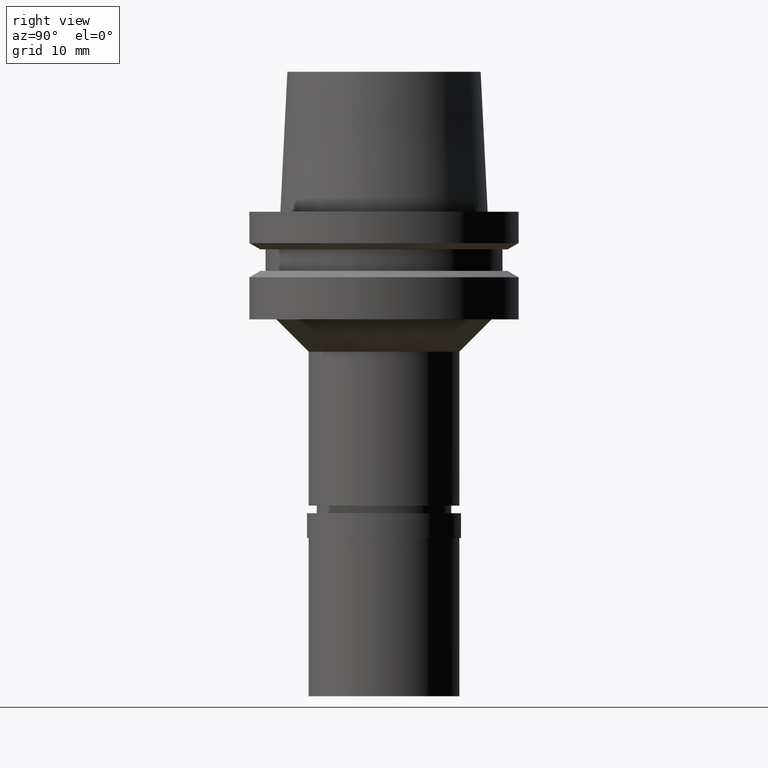
[diagram: clean part render]
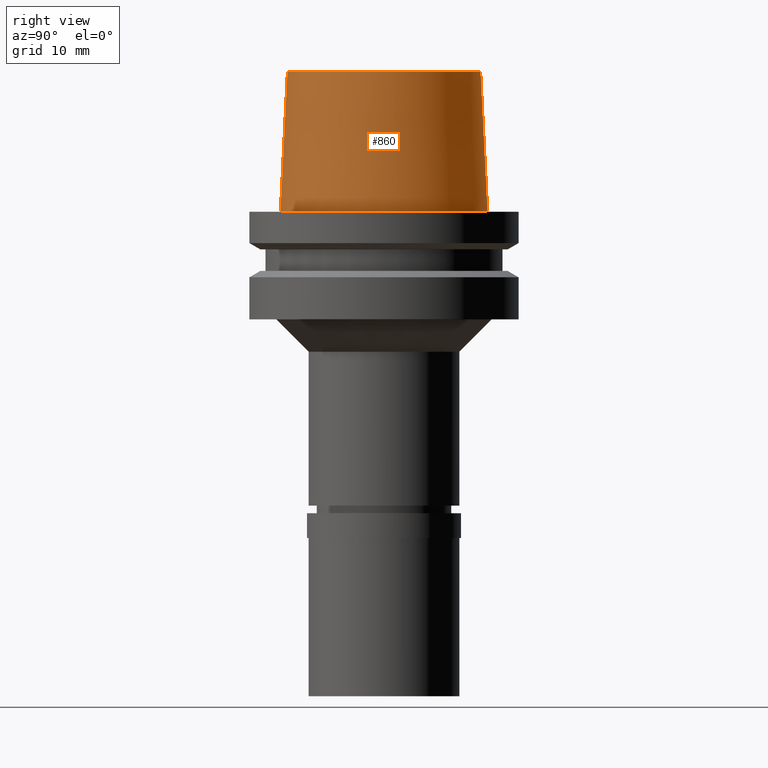
[diagram: same view with one face highlighted and labeled with its STEP entity id]
A machine part, right view. The second image highlights one B-rep face of the part: STEP entity #860.
In plain terms, the highlighted conical surface has half-angle 2.862 deg.
Its self-contained STEP definition (entity closure, byte-faithful):
#3 = VECTOR ( 'NONE', #2427, 999.9999999999998863 ) ;
#39 = EDGE_CURVE ( 'NONE', #2639, #1012, #2532, .T. ) ;
#57 = ORIENTED_EDGE ( 'NONE', *, *, #1254, .T. ) ;
#215 = VECTOR ( 'NONE', #1980, 999.9999999999998863 ) ;
#222 = AXIS2_PLACEMENT_3D ( 'NONE', #1605, #2438, #1413 ) ;
#251 = ORIENTED_EDGE ( 'NONE', *, *, #1776, .T. ) ;
#274 = CARTESIAN_POINT ( 'NONE',  ( 0.0000000000000000000, 8.975000960130000038, 13.00000000000000000 ) ) ;
#373 = DIRECTION ( 'NONE',  ( 0.0000000000000000000, 1.000000000000000000, 0.0000000000000000000 ) ) ;
#413 = CARTESIAN_POINT ( 'NONE',  ( 0.0000000000000000000, 0.0000000000000000000, 6.500000000000000000 ) ) ;
#424 = VERTEX_POINT ( 'NONE', #274 ) ;
#447 = ORIENTED_EDGE ( 'NONE', *, *, #2366, .F. ) ;
#860 = ADVANCED_FACE ( 'NONE', ( #1839 ), #2336, .T. ) ;
#864 = LINE ( 'NONE', #1896, #3 ) ;
#904 = CARTESIAN_POINT ( 'NONE',  ( 0.0000000000000000000, -9.624999771398000448, 1.332267629550000037E-13 ) ) ;
#1012 = VERTEX_POINT ( 'NONE', #2556 ) ;
#1028 = AXIS2_PLACEMENT_3D ( 'NONE', #2653, #2458, #373 ) ;
#1254 = EDGE_CURVE ( 'NONE', #424, #1589, #2214, .T. ) ;
#1278 = DIRECTION ( 'NONE',  ( 0.0000000000000000000, -1.000000000000000000, 0.0000000000000000000 ) ) ;
#1297 = CARTESIAN_POINT ( 'NONE',  ( 0.0000000000000000000, -8.975000960130000038, 13.00000000000000000 ) ) ;
#1413 = DIRECTION ( 'NONE',  ( 0.0000000000000000000, -1.000000000000000000, 0.0000000000000000000 ) ) ;
#1589 = VERTEX_POINT ( 'NONE', #2468 ) ;
#1605 = CARTESIAN_POINT ( 'NONE',  ( 0.0000000000000000000, 0.0000000000000000000, 2.557953848736000191E-13 ) ) ;
#1676 = EDGE_LOOP ( 'NONE', ( #57, #251, #2522, #447 ) ) ;
#1776 = EDGE_CURVE ( 'NONE', #1589, #2639, #1965, .T. ) ;
#1839 = FACE_OUTER_BOUND ( 'NONE', #1676, .T. ) ;
#1896 = CARTESIAN_POINT ( 'NONE',  ( 0.0000000000000000000, 8.975000960130000038, 13.00000000000000000 ) ) ;
#1965 = LINE ( 'NONE', #1297, #215 ) ;
#1980 = DIRECTION ( 'NONE',  ( 0.0000000000000000000, -0.04993752584484958956, -0.9987523434327927330 ) ) ;
#2212 = AXIS2_PLACEMENT_3D ( 'NONE', #413, #2288, #1278 ) ;
#2214 = CIRCLE ( 'NONE', #1028, 8.975000960130000038 ) ;
#2288 = DIRECTION ( 'NONE',  ( 0.0000000000000000000, 0.0000000000000000000, -1.000000000000000000 ) ) ;
#2336 = CONICAL_SURFACE ( 'NONE', #2212, 9.300000365763999355, 0.04995830450907576964 ) ;
#2366 = EDGE_CURVE ( 'NONE', #424, #1012, #864, .T. ) ;
#2427 = DIRECTION ( 'NONE',  ( 0.0000000000000000000, 0.04993752584484958956, -0.9987523434327927330 ) ) ;
#2438 = DIRECTION ( 'NONE',  ( 0.0000000000000000000, 0.0000000000000000000, 1.000000000000000000 ) ) ;
#2458 = DIRECTION ( 'NONE',  ( 0.0000000000000000000, 0.0000000000000000000, -1.000000000000000000 ) ) ;
#2468 = CARTESIAN_POINT ( 'NONE',  ( 0.0000000000000000000, -8.975000960130000038, 13.00000000000000000 ) ) ;
#2522 = ORIENTED_EDGE ( 'NONE', *, *, #39, .T. ) ;
#2532 = CIRCLE ( 'NONE', #222, 9.624999771398000448 ) ;
#2556 = CARTESIAN_POINT ( 'NONE',  ( 0.0000000000000000000, 9.624999771398000448, 1.332267629550000037E-13 ) ) ;
#2639 = VERTEX_POINT ( 'NONE', #904 ) ;
#2653 = CARTESIAN_POINT ( 'NONE',  ( 0.0000000000000000000, 0.0000000000000000000, 13.00000000000000000 ) ) ;